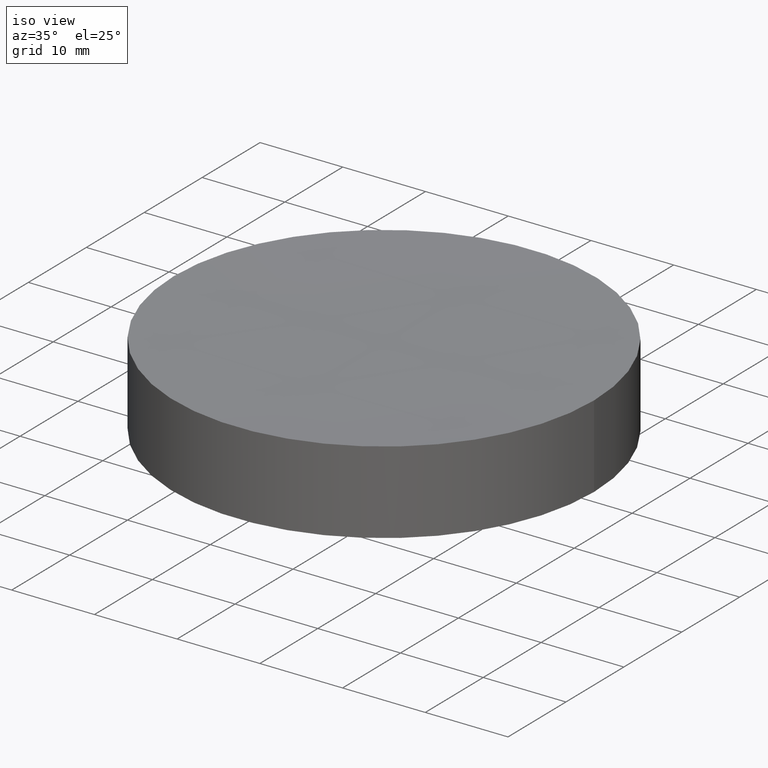
[diagram: clean part render]
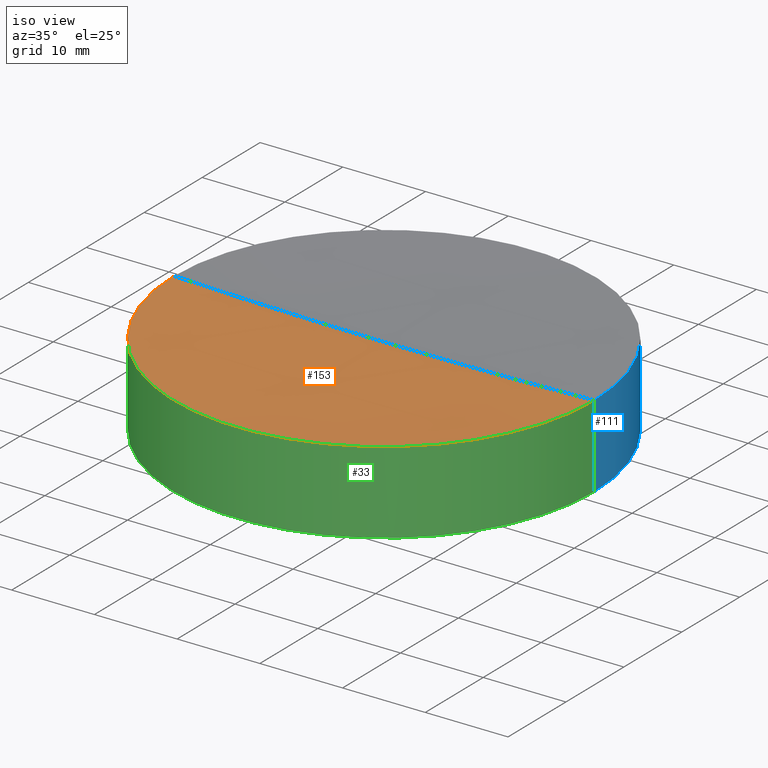
[diagram: same view with three faces highlighted in distinct colors, each labeled with its STEP entity id]
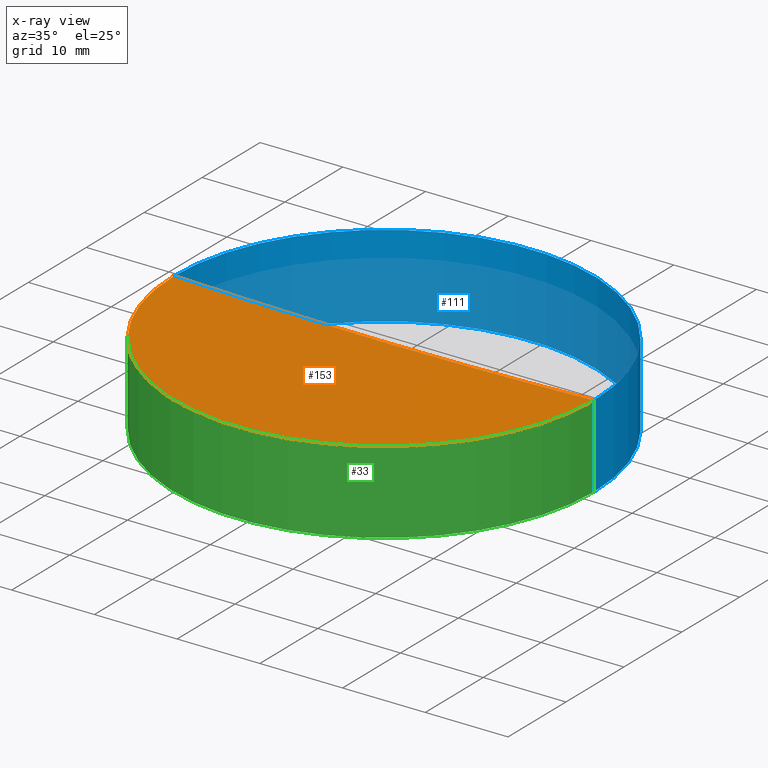
[diagram: x-ray of the same camera — body ghosted, the three highlighted faces saturated]
A machine part, iso view with three faces highlighted in distinct colors.
The next image is the same camera in x-ray (body ghosted, the three faces saturated) — at least one of them is partly hidden behind the body in this view.
Their STEP definitions:

[orange] entity #153 — the highlighted spherical surface has radius 750 mm.
#11 = ORIENTED_EDGE ( 'NONE', *, *, #12, .F. ) ;
#12 = EDGE_CURVE ( 'NONE', #21, #31, #198, .T. ) ;
#21 = VERTEX_POINT ( 'NONE', #107 ) ;
#24 = CARTESIAN_POINT ( 'NONE',  ( 9.367506770274758310E-14, 0.000000000000000000, 759.5697699347272192 ) ) ;
#27 = SPHERICAL_SURFACE ( 'NONE', #112, 750.0000000000001137 ) ;
#31 = VERTEX_POINT ( 'NONE', #185 ) ;
#42 = CARTESIAN_POINT ( 'NONE',  ( 9.367506770274758310E-14, 0.000000000000000000, 759.5697699347272192 ) ) ;
#44 = CIRCLE ( 'NONE', #119, 25.40000000000502922 ) ;
#49 = DIRECTION ( 'NONE',  ( 1.224646799147353207E-16, -1.000000000000000000, 0.000000000000000000 ) ) ;
#53 = CARTESIAN_POINT ( 'NONE',  ( 25.40000000000512514, 3.110602869834904798E-15, 10.00000000000000888 ) ) ;
#54 = ORIENTED_EDGE ( 'NONE', *, *, #170, .T. ) ;
#63 = AXIS2_PLACEMENT_3D ( 'NONE', #42, #148, #143 ) ;
#81 = EDGE_LOOP ( 'NONE', ( #11, #84, #54 ) ) ;
#84 = ORIENTED_EDGE ( 'NONE', *, *, #94, .F. ) ;
#88 = FACE_OUTER_BOUND ( 'NONE', #81, .T. ) ;
#94 = EDGE_CURVE ( 'NONE', #154, #21, #44, .T. ) ;
#99 = DIRECTION ( 'NONE',  ( -0.000000000000000000, -0.000000000000000000, -1.000000000000000000 ) ) ;
#107 = CARTESIAN_POINT ( 'NONE',  ( -25.40000000000493330, 0.000000000000000000, 10.00000000000000888 ) ) ;
#112 = AXIS2_PLACEMENT_3D ( 'NONE', #24, #147, #182 ) ;
#119 = AXIS2_PLACEMENT_3D ( 'NONE', #192, #99, #165 ) ;
#131 = AXIS2_PLACEMENT_3D ( 'NONE', #137, #49, #135 ) ;
#135 = DIRECTION ( 'NONE',  ( 1.000000000000000000, 1.224646799147353207E-16, 0.000000000000000000 ) ) ;
#137 = CARTESIAN_POINT ( 'NONE',  ( 9.367506770274758310E-14, 0.000000000000000000, 759.5697699347272192 ) ) ;
#143 = DIRECTION ( 'NONE',  ( 0.000000000000000000, 0.000000000000000000, 1.000000000000000000 ) ) ;
#147 = DIRECTION ( 'NONE',  ( 0.000000000000000000, -1.000000000000000000, -0.000000000000000000 ) ) ;
#148 = DIRECTION ( 'NONE',  ( 0.000000000000000000, 1.000000000000000000, -0.000000000000000000 ) ) ;
#149 = CIRCLE ( 'NONE', #63, 750.0000000000002274 ) ;
#153 = ADVANCED_FACE ( 'NONE', ( #88 ), #27, .F. ) ;
#154 = VERTEX_POINT ( 'NONE', #53 ) ;
#165 = DIRECTION ( 'NONE',  ( 1.000000000000000000, 0.000000000000000000, 0.000000000000000000 ) ) ;
#170 = EDGE_CURVE ( 'NONE', #154, #31, #149, .T. ) ;
#182 = DIRECTION ( 'NONE',  ( 1.000000000000000000, 0.000000000000000000, 0.000000000000000000 ) ) ;
#185 = CARTESIAN_POINT ( 'NONE',  ( 1.395993226707733394E-13, 0.000000000000000000, 9.569769934727133887 ) ) ;
#192 = CARTESIAN_POINT ( 'NONE',  ( 9.367506770274758310E-14, 0.000000000000000000, 10.00000000000000888 ) ) ;
#198 = CIRCLE ( 'NONE', #131, 750.0000000000001137 ) ;

[blue] entity #111 — the highlighted cylindrical surface (partial cylindrical patch) has radius 25.4 mm, axis along (-0, -0, -1).
#6 = ORIENTED_EDGE ( 'NONE', *, *, #197, .T. ) ;
#10 = CARTESIAN_POINT ( 'NONE',  ( 0.000000000000000000, 0.000000000000000000, 10.00000000000000000 ) ) ;
#15 = CARTESIAN_POINT ( 'NONE',  ( -25.39999999999999858, 0.000000000000000000, 10.00000000000000000 ) ) ;
#21 = VERTEX_POINT ( 'NONE', #107 ) ;
#30 = CARTESIAN_POINT ( 'NONE',  ( 0.000000000000000000, 0.000000000000000000, 0.000000000000000000 ) ) ;
#36 = AXIS2_PLACEMENT_3D ( 'NONE', #10, #179, #73 ) ;
#40 = EDGE_CURVE ( 'NONE', #154, #161, #155, .T. ) ;
#47 = LINE ( 'NONE', #15, #105 ) ;
#52 = VECTOR ( 'NONE', #134, 1000.000000000000000 ) ;
#53 = CARTESIAN_POINT ( 'NONE',  ( 25.40000000000512514, 3.110602869834904798E-15, 10.00000000000000888 ) ) ;
#57 = CARTESIAN_POINT ( 'NONE',  ( 25.39999999999999858, 3.110602869834276865E-15, 0.000000000000000000 ) ) ;
#67 = AXIS2_PLACEMENT_3D ( 'NONE', #68, #125, #115 ) ;
#68 = CARTESIAN_POINT ( 'NONE',  ( 9.367506770274758310E-14, 0.000000000000000000, 10.00000000000000888 ) ) ;
#73 = DIRECTION ( 'NONE',  ( -1.000000000000000000, 0.000000000000000000, 0.000000000000000000 ) ) ;
#76 = DIRECTION ( 'NONE',  ( 1.000000000000000000, 0.000000000000000000, 0.000000000000000000 ) ) ;
#77 = EDGE_CURVE ( 'NONE', #161, #79, #158, .T. ) ;
#79 = VERTEX_POINT ( 'NONE', #108 ) ;
#82 = EDGE_CURVE ( 'NONE', #21, #79, #47, .T. ) ;
#87 = CYLINDRICAL_SURFACE ( 'NONE', #36, 25.39999999999999858 ) ;
#92 = ORIENTED_EDGE ( 'NONE', *, *, #77, .T. ) ;
#105 = VECTOR ( 'NONE', #172, 1000.000000000000000 ) ;
#107 = CARTESIAN_POINT ( 'NONE',  ( -25.40000000000493330, 0.000000000000000000, 10.00000000000000888 ) ) ;
#108 = CARTESIAN_POINT ( 'NONE',  ( -25.39999999999999858, 0.000000000000000000, 0.000000000000000000 ) ) ;
#111 = ADVANCED_FACE ( 'NONE', ( #164 ), #87, .T. ) ;
#115 = DIRECTION ( 'NONE',  ( 1.000000000000000000, 0.000000000000000000, 0.000000000000000000 ) ) ;
#124 = AXIS2_PLACEMENT_3D ( 'NONE', #30, #152, #76 ) ;
#125 = DIRECTION ( 'NONE',  ( -0.000000000000000000, -0.000000000000000000, -1.000000000000000000 ) ) ;
#126 = ORIENTED_EDGE ( 'NONE', *, *, #40, .T. ) ;
#134 = DIRECTION ( 'NONE',  ( -0.000000000000000000, -0.000000000000000000, -1.000000000000000000 ) ) ;
#152 = DIRECTION ( 'NONE',  ( 0.000000000000000000, 0.000000000000000000, 1.000000000000000000 ) ) ;
#154 = VERTEX_POINT ( 'NONE', #53 ) ;
#155 = LINE ( 'NONE', #186, #52 ) ;
#158 = CIRCLE ( 'NONE', #124, 25.39999999999999858 ) ;
#161 = VERTEX_POINT ( 'NONE', #57 ) ;
#164 = FACE_OUTER_BOUND ( 'NONE', #193, .T. ) ;
#171 = ORIENTED_EDGE ( 'NONE', *, *, #82, .F. ) ;
#172 = DIRECTION ( 'NONE',  ( -0.000000000000000000, -0.000000000000000000, -1.000000000000000000 ) ) ;
#176 = CIRCLE ( 'NONE', #67, 25.40000000000502922 ) ;
#179 = DIRECTION ( 'NONE',  ( -0.000000000000000000, -0.000000000000000000, -1.000000000000000000 ) ) ;
#186 = CARTESIAN_POINT ( 'NONE',  ( 25.39999999999999858, 3.110602869834276865E-15, 10.00000000000000000 ) ) ;
#193 = EDGE_LOOP ( 'NONE', ( #6, #126, #92, #171 ) ) ;
#197 = EDGE_CURVE ( 'NONE', #21, #154, #176, .T. ) ;

[green] entity #33 — the highlighted cylindrical surface (partial cylindrical patch) has radius 25.4 mm, axis along (-0, -0, -1).
#1 = DIRECTION ( 'NONE',  ( 1.000000000000000000, 0.000000000000000000, 0.000000000000000000 ) ) ;
#3 = AXIS2_PLACEMENT_3D ( 'NONE', #78, #91, #1 ) ;
#13 = DIRECTION ( 'NONE',  ( -0.000000000000000000, -0.000000000000000000, -1.000000000000000000 ) ) ;
#15 = CARTESIAN_POINT ( 'NONE',  ( -25.39999999999999858, 0.000000000000000000, 10.00000000000000000 ) ) ;
#17 = DIRECTION ( 'NONE',  ( -1.000000000000000000, 0.000000000000000000, 0.000000000000000000 ) ) ;
#21 = VERTEX_POINT ( 'NONE', #107 ) ;
#32 = CYLINDRICAL_SURFACE ( 'NONE', #138, 25.39999999999999858 ) ;
#33 = ADVANCED_FACE ( 'NONE', ( #62 ), #32, .T. ) ;
#34 = ORIENTED_EDGE ( 'NONE', *, *, #40, .F. ) ;
#40 = EDGE_CURVE ( 'NONE', #154, #161, #155, .T. ) ;
#44 = CIRCLE ( 'NONE', #119, 25.40000000000502922 ) ;
#47 = LINE ( 'NONE', #15, #105 ) ;
#52 = VECTOR ( 'NONE', #134, 1000.000000000000000 ) ;
#53 = CARTESIAN_POINT ( 'NONE',  ( 25.40000000000512514, 3.110602869834904798E-15, 10.00000000000000888 ) ) ;
#57 = CARTESIAN_POINT ( 'NONE',  ( 25.39999999999999858, 3.110602869834276865E-15, 0.000000000000000000 ) ) ;
#60 = EDGE_CURVE ( 'NONE', #79, #161, #80, .T. ) ;
#62 = FACE_OUTER_BOUND ( 'NONE', #139, .T. ) ;
#69 = ORIENTED_EDGE ( 'NONE', *, *, #94, .T. ) ;
#78 = CARTESIAN_POINT ( 'NONE',  ( 0.000000000000000000, 0.000000000000000000, 0.000000000000000000 ) ) ;
#79 = VERTEX_POINT ( 'NONE', #108 ) ;
#80 = CIRCLE ( 'NONE', #3, 25.39999999999999858 ) ;
#82 = EDGE_CURVE ( 'NONE', #21, #79, #47, .T. ) ;
#91 = DIRECTION ( 'NONE',  ( 0.000000000000000000, 0.000000000000000000, 1.000000000000000000 ) ) ;
#93 = CARTESIAN_POINT ( 'NONE',  ( 0.000000000000000000, 0.000000000000000000, 10.00000000000000000 ) ) ;
#94 = EDGE_CURVE ( 'NONE', #154, #21, #44, .T. ) ;
#99 = DIRECTION ( 'NONE',  ( -0.000000000000000000, -0.000000000000000000, -1.000000000000000000 ) ) ;
#100 = ORIENTED_EDGE ( 'NONE', *, *, #60, .T. ) ;
#105 = VECTOR ( 'NONE', #172, 1000.000000000000000 ) ;
#107 = CARTESIAN_POINT ( 'NONE',  ( -25.40000000000493330, 0.000000000000000000, 10.00000000000000888 ) ) ;
#108 = CARTESIAN_POINT ( 'NONE',  ( -25.39999999999999858, 0.000000000000000000, 0.000000000000000000 ) ) ;
#119 = AXIS2_PLACEMENT_3D ( 'NONE', #192, #99, #165 ) ;
#134 = DIRECTION ( 'NONE',  ( -0.000000000000000000, -0.000000000000000000, -1.000000000000000000 ) ) ;
#138 = AXIS2_PLACEMENT_3D ( 'NONE', #93, #13, #17 ) ;
#139 = EDGE_LOOP ( 'NONE', ( #34, #69, #201, #100 ) ) ;
#154 = VERTEX_POINT ( 'NONE', #53 ) ;
#155 = LINE ( 'NONE', #186, #52 ) ;
#161 = VERTEX_POINT ( 'NONE', #57 ) ;
#165 = DIRECTION ( 'NONE',  ( 1.000000000000000000, 0.000000000000000000, 0.000000000000000000 ) ) ;
#172 = DIRECTION ( 'NONE',  ( -0.000000000000000000, -0.000000000000000000, -1.000000000000000000 ) ) ;
#186 = CARTESIAN_POINT ( 'NONE',  ( 25.39999999999999858, 3.110602869834276865E-15, 10.00000000000000000 ) ) ;
#192 = CARTESIAN_POINT ( 'NONE',  ( 9.367506770274758310E-14, 0.000000000000000000, 10.00000000000000888 ) ) ;
#201 = ORIENTED_EDGE ( 'NONE', *, *, #82, .T. ) ;